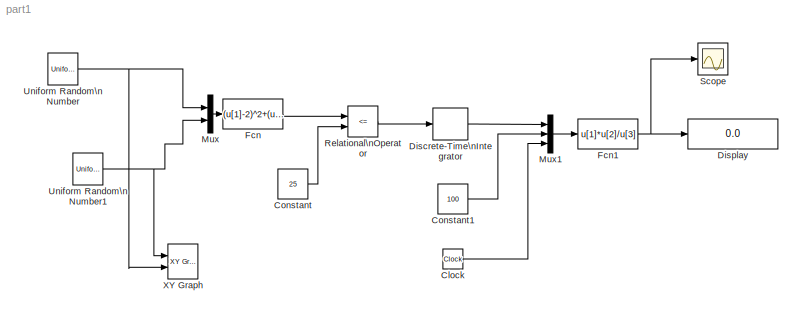
MODEL part1
KIND model
BLOCK [Clock] Clock
  SID = 1
BLOCK [Constant] Constant
  SID = 2
  Value = 25
BLOCK [Constant] Constant1
  SID = 3
  Value = 100
BLOCK [DiscreteIntegrator] Discrete-Time\nIntegrator
  ICPrevOutput = DiscIntNeverNeededParam
  ICPrevScaledInput = DiscIntNeverNeededParam
  OutDataTypeStr = double
  Ports = [1, 1]
  SID = 4
BLOCK [Display] Display
  Decimation = 1
  Ports = [1]
  SID = 5
BLOCK [Fcn] Fcn
  Expr = (u[1]-2)^2+(u[2]-3)^2
  SID = 6
BLOCK [Fcn] Fcn1
  Expr = u[1]*u[2]/u[3]
  SID = 7
BLOCK [Mux] Mux
  DisplayOption = bar
  Inputs = 2
  Ports = [2, 1]
  SID = 8
BLOCK [Mux] Mux1
  DisplayOption = bar
  Inputs = 3
  Ports = [3, 1]
  SID = 9
BLOCK [RelationalOperator] Relational\nOperator
  InputSameDT = off
  Operator = <=
  OutDataTypeStr = boolean
  Ports = [2, 1]
  SID = 10
BLOCK [Scope] Scope
  NumInputPorts = 1
  Ports = [1]
  SID = 11
  ScopeSpecificationString = Simulink.scopes.TimeScopeBlockCfg('CurrentConfiguration', extmgr.ConfigurationSet(extmgr.Configuration('Core','General UI',true),extmgr.Configuration('Core','Source UI',true),extmgr.Configuration('Sources','WiredSimulink',true,'DataLoggingSaveFormat','StructureWithTime','DataLoggingLimitDataPoints',true,'DataLoggingDecimation','1','DataLoggingDecimateData',true),extmgr.Configuration('Visuals','Tim...<+1613ch>
BLOCK [UniformRandomNumber] Uniform Random\nNumber
  Maximum = 7
  Minimum = -3
  SID = 12
  SampleTime = 0
BLOCK [UniformRandomNumber] Uniform Random\nNumber1
  Maximum = 8
  Minimum = -2
  SID = 13
  SampleTime = 0
  Seed = 11
BLOCK [Reference] XY Graph  REF=simulink/Sinks/XY Graph
  Ports = [2]
  SID = 14
  SourceBlock = simulink/Sinks/XY Graph
  SourceProductBaseCode = SL
  SourceProductName = Simulink
  SourceType = XY scope.
  st = 0
  xmax = 8
  xmin = -2
  ymax = 8
  ymin = -2
LINE Clock:1 -> Mux1:3
LINE Constant1:1 -> Mux1:2
LINE Constant:1 -> Relational\nOperator:2
LINE Discrete-Time\nIntegrator:1 -> Mux1:1
NET Fcn1:1 -> Display:1, Scope:1
LINE Fcn:1 -> Relational\nOperator:1
LINE Mux1:1 -> Fcn1:1
LINE Mux:1 -> Fcn:1
LINE Relational\nOperator:1 -> Discrete-Time\nIntegrator:1
NET Uniform Random\nNumber1:1 -> Mux:2, XY Graph:1
NET Uniform Random\nNumber:1 -> Mux:1, XY Graph:2
note: NET lines group one-source signal fan-out (src -> all destinations, sorted); 1:1 wires keep LINE
